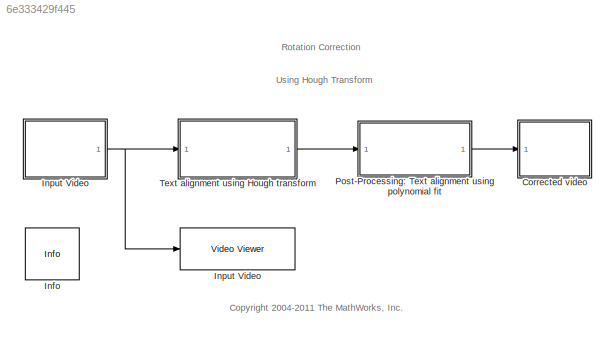
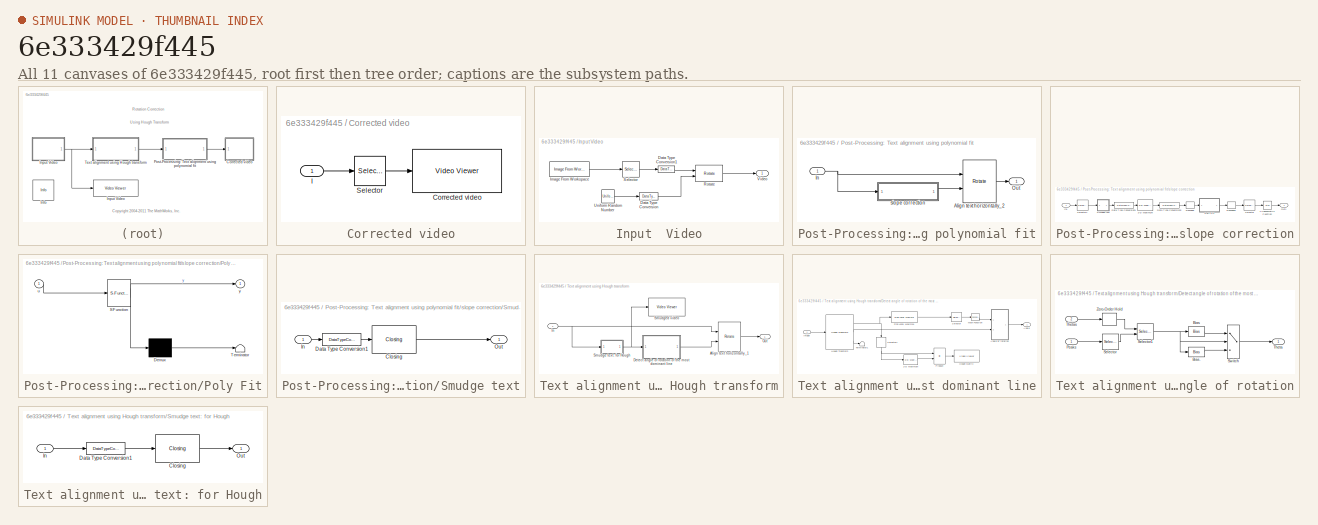
[diagram: thumbnail index - all 11 canvases of the model, root first then tree order]
MODEL slx_6e333429f445
KIND model
CONFIG AbsTol = auto
CONFIG FixedStep = auto
CONFIG MaxStep = auto
CONFIG MinStep = auto
CONFIG RelTol = 1e-3
CONFIG SampleTimeConstraint = Unconstrained
CONFIG Solver = FixedStepDiscrete
CONFIG SolverMode = Auto
CONFIG SolverName = FixedStepDiscrete
CONFIG StartTime = 0.0
CONFIG StopTime = inf
BLOCK [SubSystem] Corrected video
  Ports = [1]
  RequestExecContextInheritance = off
  Variant = off
BLOCK [Reference] Corrected video/Corrected video  REF=visionsinks/Video Viewer
  Ports = [1]
  SourceBlock = visionsinks/Video Viewer
  SourceType = Video Viewer
  UserDataPersistent = on
BLOCK [Inport] Corrected video/I
  IconDisplay = Port number
BLOCK [Selector] Corrected video/Selector
  IndexOptions = Index vector (dialog),Index vector (dialog)
  Indices = [112:(442-111)],[112:(442-111)]
  InputPortWidth = 3
  NumberOfDimensions = 2
  OutputSizes = 1,1
  Ports = [1, 1]
BLOCK [Reference] Info  REF=vipmisc/Info
  Ports = []
  SourceBlock = vipmisc/Info
  SourceType = Info
BLOCK [SubSystem] Input  Video
  Ports = [0, 1]
  RequestExecContextInheritance = off
  Variant = off
BLOCK [DataTypeConversion] Input  Video/Data Type Conversion
  OutDataTypeStr = single
  RndMeth = Floor
  SaturateOnIntegerOverflow = off
BLOCK [DataTypeConversion] Input  Video/Data Type Conversion1
  OutDataTypeStr = single
BLOCK [Reference] Input  Video/Image From Workspace  REF=visionsources/Image From Workspace
  Ports = [0, 1]
  SourceBlock = visionsources/Image From Workspace
  SourceType = Image From Workspace
  Tag = vipblks_nd
BLOCK [Reference] Input  Video/Rotate  REF=visiongeotforms/Rotate
  Ports = [2, 1]
  SourceBlock = visiongeotforms/Rotate
  SourceType = Rotate
BLOCK [Selector] Input  Video/Selector
  IndexOptions = Index vector (dialog),Index vector (dialog)
  Indices = [5:60],[5:(256-40)]
  InputPortWidth = 3
  NumberOfDimensions = 2
  OutputSizes = 1,1
  Ports = [1, 1]
BLOCK [UniformRandomNumber] Input  Video/Uniform Random Number
  Maximum = pi/6
  Minimum = -pi/6
  SampleTime = 1/30
  VectorParams1D = off
BLOCK [Outport] Input  Video/Video
  IconDisplay = Port number
BLOCK [Reference] Input Video  REF=visionsinks/Video Viewer
  Ports = [1]
  SourceBlock = visionsinks/Video Viewer
  SourceType = Video Viewer
  UserDataPersistent = on
BLOCK [SubSystem] Post-Processing: Text alignment using polynomial fit
  Ports = [1, 1]
  RequestExecContextInheritance = off
  Variant = off
BLOCK [Reference] Post-Processing: Text alignment using polynomial fit/Align text horizontally_2  REF=visiongeotforms/Rotate
  Ports = [2, 1]
  SourceBlock = visiongeotforms/Rotate
  SourceType = Rotate
BLOCK [Inport] Post-Processing: Text alignment using polynomial fit/In
  IconDisplay = Port number
BLOCK [Outport] Post-Processing: Text alignment using polynomial fit/Out
  IconDisplay = Port number
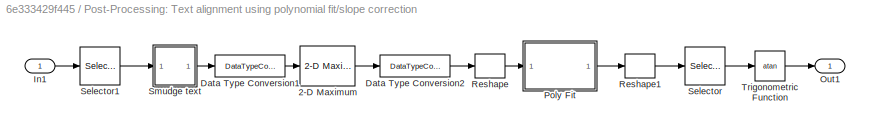
BLOCK [SubSystem] Post-Processing: Text alignment using polynomial fit/slope correction
  Ports = [1, 1]
  RequestExecContextInheritance = off
  Variant = off
BLOCK [Reference] Post-Processing: Text alignment using polynomial fit/slope correction/2-D Maximum  REF=visionstatistics/2-D Maximum
  Ports = [1, 1]
  SourceBlock = visionstatistics/2-D Maximum
  SourceType = 2-D Maximum
  UserDataPersistent = on
BLOCK [DataTypeConversion] Post-Processing: Text alignment using polynomial fit/slope correction/Data Type Conversion1
  OutDataTypeStr = single
BLOCK [DataTypeConversion] Post-Processing: Text alignment using polynomial fit/slope correction/Data Type Conversion2
  OutDataTypeStr = single
BLOCK [Inport] Post-Processing: Text alignment using polynomial fit/slope correction/In1
  IconDisplay = Port number
BLOCK [Outport] Post-Processing: Text alignment using polynomial fit/slope correction/Out1
  IconDisplay = Port number
BLOCK [SubSystem] Post-Processing: Text alignment using polynomial fit/slope correction/Poly Fit
  ErrorFcn = Stateflow.Translate.translate
  PermitHierarchicalResolution = ExplicitOnly
  Ports = [1, 1]
  RequestExecContextInheritance = off
  SFBlockType = MATLAB Function
  TreatAsAtomicUnit = on
  Variant = off
BLOCK [Demux] Post-Processing: Text alignment using polynomial fit/slope correction/Poly Fit/ Demux 
  Outputs = 1
  Ports = [1, 1]
BLOCK [S-Function] Post-Processing: Text alignment using polynomial fit/slope correction/Poly Fit/ SFunction 
  EnableBusSupport = off
  FunctionName = sf_sfun
  PortCounts = [1 2]
  Ports = [1, 2]
  SFunctionDeploymentMode = off
  Tag = Stateflow S-Function viphough 2
BLOCK [Terminator] Post-Processing: Text alignment using polynomial fit/slope correction/Poly Fit/ Terminator 
BLOCK [Inport] Post-Processing: Text alignment using polynomial fit/slope correction/Poly Fit/u
  IconDisplay = Port number
BLOCK [Outport] Post-Processing: Text alignment using polynomial fit/slope correction/Poly Fit/y
  IconDisplay = Port number
BLOCK [Reshape] Post-Processing: Text alignment using polynomial fit/slope correction/Reshape
  OutputDimensionality = Column vector (2-D)
  Ports = [1, 1]
BLOCK [Reshape] Post-Processing: Text alignment using polynomial fit/slope correction/Reshape1
  OutputDimensionality = Column vector (2-D)
  Ports = [1, 1]
BLOCK [Selector] Post-Processing: Text alignment using polynomial fit/slope correction/Selector
  IndexOptions = Index vector (dialog)
  Indices = 1
  InputPortWidth = 2
  OutputSizes = 1
  Ports = [1, 1]
BLOCK [Selector] Post-Processing: Text alignment using polynomial fit/slope correction/Selector1
  IndexOptions = Index vector (dialog),Index vector (dialog)
  Indices = [100:(313-100)],[55:(313-75)]
  InputPortWidth = 3
  NumberOfDimensions = 2
  OutputSizes = 1,1
  Ports = [1, 1]
BLOCK [SubSystem] Post-Processing: Text alignment using polynomial fit/slope correction/Smudge text
  Ports = [1, 1]
  RequestExecContextInheritance = off
  Variant = off
BLOCK [Reference] Post-Processing: Text alignment using polynomial fit/slope correction/Smudge text/Closing  REF=visionmorphops/Closing
  Ports = [1, 1]
  SourceBlock = visionmorphops/Closing
  SourceType = Closing
BLOCK [DataTypeConversion] Post-Processing: Text alignment using polynomial fit/slope correction/Smudge text/Data Type Conversion1
  OutDataTypeStr = boolean
BLOCK [Inport] Post-Processing: Text alignment using polynomial fit/slope correction/Smudge text/In
  IconDisplay = Port number
BLOCK [Outport] Post-Processing: Text alignment using polynomial fit/slope correction/Smudge text/Out
  IconDisplay = Port number
BLOCK [Trigonometry] Post-Processing: Text alignment using polynomial fit/slope correction/Trigonometric Function
  Operator = atan
  Ports = [1, 1]
BLOCK [SubSystem] Text alignment using Hough transform
  Ports = [1, 1]
  RequestExecContextInheritance = off
  Variant = off
BLOCK [Reference] Text alignment using Hough transform/Align text horizontally_1  REF=visiongeotforms/Rotate
  Ports = [2, 1]
  SourceBlock = visiongeotforms/Rotate
  SourceType = Rotate
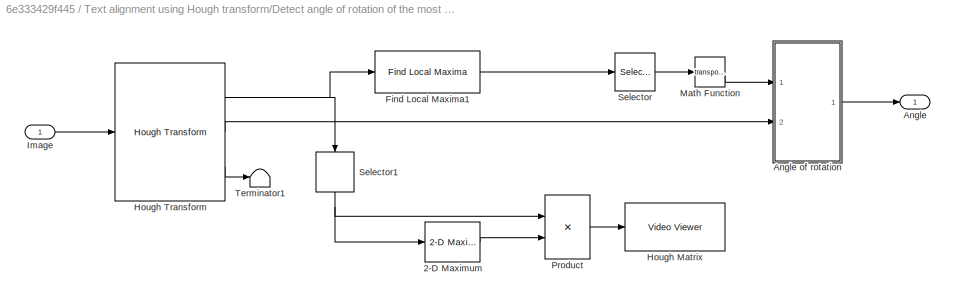
BLOCK [SubSystem] Text alignment using Hough transform/Detect angle of rotation of the most dominant line
  Ports = [1, 1]
  RequestExecContextInheritance = off
  Variant = off
BLOCK [Reference] Text alignment using Hough transform/Detect angle of rotation of the most dominant line/2-D Maximum  REF=visionstatistics/2-D Maximum
  Ports = [1, 1]
  SourceBlock = visionstatistics/2-D Maximum
  SourceType = 2-D Maximum
  UserDataPersistent = on
BLOCK [Outport] Text alignment using Hough transform/Detect angle of rotation of the most dominant line/Angle
  IconDisplay = Port number
BLOCK [SubSystem] Text alignment using Hough transform/Detect angle of rotation of the most dominant line/Angle of rotation
  Ports = [2, 1]
  RequestExecContextInheritance = off
  Variant = off
BLOCK [Bias] Text alignment using Hough transform/Detect angle of rotation of the most dominant line/Angle of rotation/Bias
  Bias = -single(pi/2)
  SaturateOnIntegerOverflow = off
BLOCK [Bias] Text alignment using Hough transform/Detect angle of rotation of the most dominant line/Angle of rotation/Bias.
  Bias = single(pi/2)
  SaturateOnIntegerOverflow = off
BLOCK [Inport] Text alignment using Hough transform/Detect angle of rotation of the most dominant line/Angle of rotation/Peaks
  IconDisplay = Port number
BLOCK [Selector] Text alignment using Hough transform/Detect angle of rotation of the most dominant line/Angle of rotation/Selector
  IndexOptions = Index vector (dialog),Index vector (dialog)
  Indices = 2,1
  InputPortWidth = 3
  NumberOfDimensions = 2
  OutputSizes = 1
  Ports = [1, 1]
BLOCK [Selector] Text alignment using Hough transform/Detect angle of rotation of the most dominant line/Angle of rotation/Selector1
  IndexOptions = Select all,Index vector (port)
  Indices = [1 3],1
  InputPortWidth = 3
  NumberOfDimensions = 2
  OutputSizes = 1,1
  Ports = [2, 1]
BLOCK [Switch] Text alignment using Hough transform/Detect angle of rotation of the most dominant line/Angle of rotation/Switch
  SaturateOnIntegerOverflow = off
BLOCK [Outport] Text alignment using Hough transform/Detect angle of rotation of the most dominant line/Angle of rotation/Theta
  IconDisplay = Port number
BLOCK [Inport] Text alignment using Hough transform/Detect angle of rotation of the most dominant line/Angle of rotation/Thetas
  IconDisplay = Port number
  Port = 2
BLOCK [ZeroOrderHold] Text alignment using Hough transform/Detect angle of rotation of the most dominant line/Angle of rotation/Zero-Order Hold
  SampleTime = -1
BLOCK [Reference] Text alignment using Hough transform/Detect angle of rotation of the most dominant line/Find Local Maxima1  REF=visionstatistics/Find Local Maxima
  Ports = [1, 1]
  SourceBlock = visionstatistics/Find Local Maxima
  SourceType = Find Local Maxima
BLOCK [Reference] Text alignment using Hough transform/Detect angle of rotation of the most dominant line/Hough Matrix  REF=visionsinks/Video Viewer
  Ports = [1]
  SourceBlock = visionsinks/Video Viewer
  SourceType = Video Viewer
  UserDataPersistent = on
BLOCK [Reference] Text alignment using Hough transform/Detect angle of rotation of the most dominant line/Hough Transform  REF=visiontransforms/Hough Transform
  Ports = [1, 3]
  SourceBlock = visiontransforms/Hough Transform
  SourceType = Hough Transform
BLOCK [Inport] Text alignment using Hough transform/Detect angle of rotation of the most dominant line/Image
  IconDisplay = Port number
BLOCK [Math] Text alignment using Hough transform/Detect angle of rotation of the most dominant line/Math Function
  Operator = transpose
  Ports = [1, 1]
BLOCK [Product] Text alignment using Hough transform/Detect angle of rotation of the most dominant line/Product
  Inputs = */
  Ports = [2, 1]
  RndMeth = Floor
BLOCK [Selector] Text alignment using Hough transform/Detect angle of rotation of the most dominant line/Selector
  IndexOptions = Select all,Index vector (dialog)
  Indices = [1 3],[2 1]
  InputPortWidth = 3
  NumberOfDimensions = 2
  OutputSizes = 1,1
  Ports = [1, 1]
BLOCK [Selector] Text alignment using Hough transform/Detect angle of rotation of the most dominant line/Selector1
  IndexOptions = Index vector (dialog),Select all
  Indices = [120:(621-70)],[112:(442-111)]
  InputPortWidth = 3
  NumberOfDimensions = 2
  OutputSizes = 1,1
  Ports = [1, 1]
BLOCK [Terminator] Text alignment using Hough transform/Detect angle of rotation of the most dominant line/Terminator1
BLOCK [Inport] Text alignment using Hough transform/In
  IconDisplay = Port number
BLOCK [Outport] Text alignment using Hough transform/Out
  IconDisplay = Port number
BLOCK [SubSystem] Text alignment using Hough transform/Smudge text: for Hough
  Ports = [1, 1]
  RequestExecContextInheritance = off
  Variant = off
BLOCK [Reference] Text alignment using Hough transform/Smudge text: for Hough/Closing  REF=visionmorphops/Closing
  Ports = [1, 1]
  SourceBlock = visionmorphops/Closing
  SourceType = Closing
BLOCK [DataTypeConversion] Text alignment using Hough transform/Smudge text: for Hough/Data Type Conversion1
  OutDataTypeStr = boolean
BLOCK [Inport] Text alignment using Hough transform/Smudge text: for Hough/In
  IconDisplay = Port number
BLOCK [Outport] Text alignment using Hough transform/Smudge text: for Hough/Out
  IconDisplay = Port number
BLOCK [Reference] Text alignment using Hough transform/Smudged video  REF=visionsinks/Video Viewer
  Ports = [1]
  SourceBlock = visionsinks/Video Viewer
  SourceType = Video Viewer
  UserDataPersistent = on
ANNOTATION (root): <copyright redacted>
ANNOTATION (root): Rotation Correction
ANNOTATION (root): Using Hough Transform
LINE Corrected video/I:1 -> Corrected video/Selector:1
LINE Corrected video/Selector:1 -> Corrected video/Corrected video:1
LINE Input  Video/Data Type Conversion1:1 -> Input  Video/Rotate:1
LINE Input  Video/Data Type Conversion:1 -> Input  Video/Rotate:2
LINE Input  Video/Image From Workspace:1 -> Input  Video/Selector:1
LINE Input  Video/Rotate:1 -> Input  Video/Video:1
LINE Input  Video/Selector:1 -> Input  Video/Data Type Conversion1:1
LINE Input  Video/Uniform Random Number:1 -> Input  Video/Data Type Conversion:1
NET Input  Video:1 -> Input Video:1, Text alignment using Hough transform:1
LINE Post-Processing: Text alignment using polynomial fit/Align text horizontally_2:1 -> Post-Processing: Text alignment using polynomial fit/Out:1
NET Post-Processing: Text alignment using polynomial fit/In:1 -> Post-Processing: Text alignment using polynomial fit/Align text horizontally_2:1, Post-Processing: Text alignment using polynomial fit/slope correction:1
LINE Post-Processing: Text alignment using polynomial fit/slope correction/2-D Maximum:1 -> Post-Processing: Text alignment using polynomial fit/slope correction/Data Type Conversion2:1
LINE Post-Processing: Text alignment using polynomial fit/slope correction/Data Type Conversion1:1 -> Post-Processing: Text alignment using polynomial fit/slope correction/2-D Maximum:1
LINE Post-Processing: Text alignment using polynomial fit/slope correction/Data Type Conversion2:1 -> Post-Processing: Text alignment using polynomial fit/slope correction/Reshape:1
LINE Post-Processing: Text alignment using polynomial fit/slope correction/In1:1 -> Post-Processing: Text alignment using polynomial fit/slope correction/Selector1:1
LINE Post-Processing: Text alignment using polynomial fit/slope correction/Poly Fit:1 -> Post-Processing: Text alignment using polynomial fit/slope correction/Reshape1:1
LINE Post-Processing: Text alignment using polynomial fit/slope correction/Reshape1:1 -> Post-Processing: Text alignment using polynomial fit/slope correction/Selector:1
LINE Post-Processing: Text alignment using polynomial fit/slope correction/Reshape:1 -> Post-Processing: Text alignment using polynomial fit/slope correction/Poly Fit:1
LINE Post-Processing: Text alignment using polynomial fit/slope correction/Selector1:1 -> Post-Processing: Text alignment using polynomial fit/slope correction/Smudge text:1
LINE Post-Processing: Text alignment using polynomial fit/slope correction/Selector:1 -> Post-Processing: Text alignment using polynomial fit/slope correction/Trigonometric Function:1
LINE Post-Processing: Text alignment using polynomial fit/slope correction/Smudge text/Closing:1 -> Post-Processing: Text alignment using polynomial fit/slope correction/Smudge text/Out:1
LINE Post-Processing: Text alignment using polynomial fit/slope correction/Smudge text/Data Type Conversion1:1 -> Post-Processing: Text alignment using polynomial fit/slope correction/Smudge text/Closing:1
LINE Post-Processing: Text alignment using polynomial fit/slope correction/Smudge text/In:1 -> Post-Processing: Text alignment using polynomial fit/slope correction/Smudge text/Data Type Conversion1:1
LINE Post-Processing: Text alignment using polynomial fit/slope correction/Smudge text:1 -> Post-Processing: Text alignment using polynomial fit/slope correction/Data Type Conversion1:1
LINE Post-Processing: Text alignment using polynomial fit/slope correction/Trigonometric Function:1 -> Post-Processing: Text alignment using polynomial fit/slope correction/Out1:1
LINE Post-Processing: Text alignment using polynomial fit/slope correction:1 -> Post-Processing: Text alignment using polynomial fit/Align text horizontally_2:2
LINE Post-Processing: Text alignment using polynomial fit:1 -> Corrected video:1
LINE Text alignment using Hough transform/Align text horizontally_1:1 -> Text alignment using Hough transform/Out:1
LINE Text alignment using Hough transform/Detect angle of rotation of the most dominant line/2-D Maximum:1 -> Text alignment using Hough transform/Detect angle of rotation of the most dominant line/Product:2
LINE Text alignment using Hough transform/Detect angle of rotation of the most dominant line/Angle of rotation/Bias.:1 -> Text alignment using Hough transform/Detect angle of rotation of the most dominant line/Angle of rotation/Switch:3
LINE Text alignment using Hough transform/Detect angle of rotation of the most dominant line/Angle of rotation/Bias:1 -> Text alignment using Hough transform/Detect angle of rotation of the most dominant line/Angle of rotation/Switch:1
LINE Text alignment using Hough transform/Detect angle of rotation of the most dominant line/Angle of rotation/Peaks:1 -> Text alignment using Hough transform/Detect angle of rotation of the most dominant line/Angle of rotation/Selector:1
NET Text alignment using Hough transform/Detect angle of rotation of the most dominant line/Angle of rotation/Selector1:1 -> Text alignment using Hough transform/Detect angle of rotation of the most dominant line/Angle of rotation/Bias.:1, Text alignment using Hough transform/Detect angle of rotation of the most dominant line/Angle of rotation/Bias:1, Text alignment using Hough transform/Detect angle of rotation of the most dominant line/Angle of rotation/Switch:2
LINE Text alignment using Hough transform/Detect angle of rotation of the most dominant line/Angle of rotation/Selector:1 -> Text alignment using Hough transform/Detect angle of rotation of the most dominant line/Angle of rotation/Selector1:2
LINE Text alignment using Hough transform/Detect angle of rotation of the most dominant line/Angle of rotation/Switch:1 -> Text alignment using Hough transform/Detect angle of rotation of the most dominant line/Angle of rotation/Theta:1
LINE Text alignment using Hough transform/Detect angle of rotation of the most dominant line/Angle of rotation/Thetas:1 -> Text alignment using Hough transform/Detect angle of rotation of the most dominant line/Angle of rotation/Zero-Order Hold:1
LINE Text alignment using Hough transform/Detect angle of rotation of the most dominant line/Angle of rotation/Zero-Order Hold:1 -> Text alignment using Hough transform/Detect angle of rotation of the most dominant line/Angle of rotation/Selector1:1
LINE Text alignment using Hough transform/Detect angle of rotation of the most dominant line/Angle of rotation:1 -> Text alignment using Hough transform/Detect angle of rotation of the most dominant line/Angle:1
LINE Text alignment using Hough transform/Detect angle of rotation of the most dominant line/Find Local Maxima1:1 -> Text alignment using Hough transform/Detect angle of rotation of the most dominant line/Selector:1
NET Text alignment using Hough transform/Detect angle of rotation of the most dominant line/Hough Transform:1 -> Text alignment using Hough transform/Detect angle of rotation of the most dominant line/Find Local Maxima1:1, Text alignment using Hough transform/Detect angle of rotation of the most dominant line/Selector1:1
LINE Text alignment using Hough transform/Detect angle of rotation of the most dominant line/Hough Transform:2 -> Text alignment using Hough transform/Detect angle of rotation of the most dominant line/Angle of rotation:2
LINE Text alignment using Hough transform/Detect angle of rotation of the most dominant line/Hough Transform:3 -> Text alignment using Hough transform/Detect angle of rotation of the most dominant line/Terminator1:1
LINE Text alignment using Hough transform/Detect angle of rotation of the most dominant line/Image:1 -> Text alignment using Hough transform/Detect angle of rotation of the most dominant line/Hough Transform:1
LINE Text alignment using Hough transform/Detect angle of rotation of the most dominant line/Math Function:1 -> Text alignment using Hough transform/Detect angle of rotation of the most dominant line/Angle of rotation:1
LINE Text alignment using Hough transform/Detect angle of rotation of the most dominant line/Product:1 -> Text alignment using Hough transform/Detect angle of rotation of the most dominant line/Hough Matrix:1
NET Text alignment using Hough transform/Detect angle of rotation of the most dominant line/Selector1:1 -> Text alignment using Hough transform/Detect angle of rotation of the most dominant line/2-D Maximum:1, Text alignment using Hough transform/Detect angle of rotation of the most dominant line/Product:1
LINE Text alignment using Hough transform/Detect angle of rotation of the most dominant line/Selector:1 -> Text alignment using Hough transform/Detect angle of rotation of the most dominant line/Math Function:1
LINE Text alignment using Hough transform/Detect angle of rotation of the most dominant line:1 -> Text alignment using Hough transform/Align text horizontally_1:2
NET Text alignment using Hough transform/In:1 -> Text alignment using Hough transform/Align text horizontally_1:1, Text alignment using Hough transform/Smudge text: for Hough:1
LINE Text alignment using Hough transform/Smudge text: for Hough/Closing:1 -> Text alignment using Hough transform/Smudge text: for Hough/Out:1
LINE Text alignment using Hough transform/Smudge text: for Hough/Data Type Conversion1:1 -> Text alignment using Hough transform/Smudge text: for Hough/Closing:1
LINE Text alignment using Hough transform/Smudge text: for Hough/In:1 -> Text alignment using Hough transform/Smudge text: for Hough/Data Type Conversion1:1
NET Text alignment using Hough transform/Smudge text: for Hough:1 -> Text alignment using Hough transform/Detect angle of rotation of the most dominant line:1, Text alignment using Hough transform/Smudged video:1
LINE Text alignment using Hough transform:1 -> Post-Processing: Text alignment using polynomial fit:1
note: NET lines group one-source signal fan-out (src -> all destinations, sorted); 1:1 wires keep LINE
CHART Post-Processing:
Text alignment
using polynomial fit/slope correction/Poly Fit states=1 transitions=1
  STATE_LABEL 'eML_blk_kernel()'
  STATE_LABEL "SCRIPT:\nfunction y = fcn(u)\n%#codegen\n\nx = (0:183)';\n\ncoeff = polyfit(x,u,1);\ny=coeff';"
